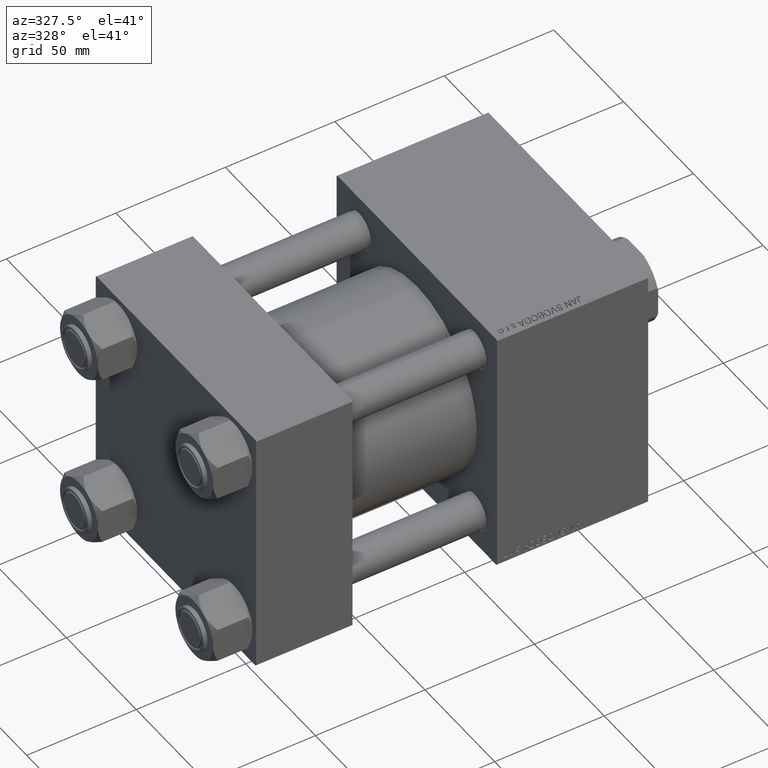
[diagram: clean part render]
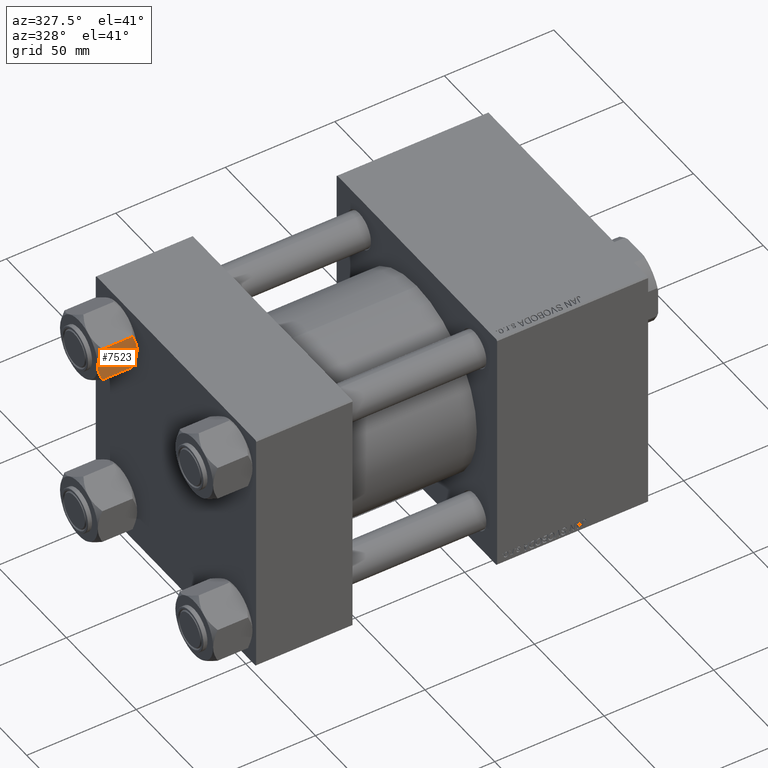
[diagram: same view with one face highlighted and labeled with its STEP entity id]
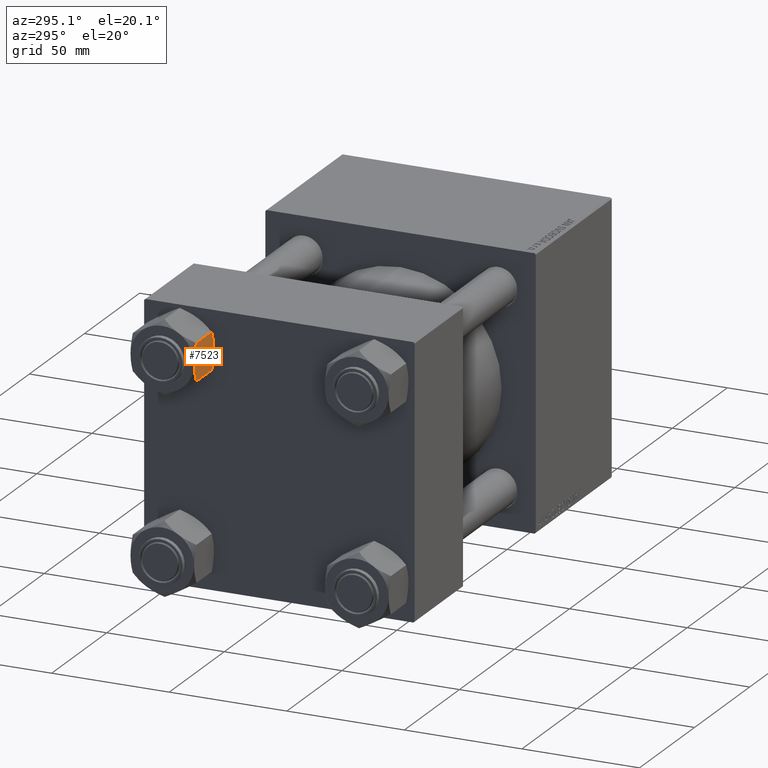
[diagram: same view with one face highlighted and labeled with its STEP entity id]
A machine part, auxiliary view. The second image highlights one B-rep face of the part: STEP entity #7523.
A second angle (auxiliary view) of the same face is appended — the face is thin or edge-on in the first view.
In plain terms, the highlighted planar face has unit normal (-0, 1, -0).
Its self-contained STEP definition (entity closure, byte-faithful):
#1155 = CARTESIAN_POINT ( 'NONE',  ( -7.030888348548060662, -13.52731680711294082, -1.709337883550297699 ) ) ;
#1221 = CARTESIAN_POINT ( 'NONE',  ( -3.287826776903143067, -13.52731680711293727, -17.61954155462465366 ) ) ;
#1599 = AXIS2_PLACEMENT_3D ( 'NONE', #21681, #33462, #13989 ) ;
#1779 = CARTESIAN_POINT ( 'NONE',  ( 7.810000000000002274, -13.52731680711293372, -16.00000000000000000 ) ) ;
#2582 = CARTESIAN_POINT ( 'NONE',  ( 7.810000000000002274, -13.52731680711293372, -18.00000000000000000 ) ) ;
#2660 = B_SPLINE_CURVE_WITH_KNOTS ( 'NONE', 3,
 ( #20650, #1155, #48002, #12950, #2668, #30352, #2920, #18822 ),
 .UNSPECIFIED., .F., .F.,
 ( 4, 2, 2, 4 ),
 ( 0.01980594295952729095, 0.02179054093496183425, 0.02377513891039637756, 0.02774433486126546416 ),
 .UNSPECIFIED. ) ;
#2668 = CARTESIAN_POINT ( 'NONE',  ( -4.553769687922305742, -13.52731680711294082, -0.7327291995145158721 ) ) ;
#2682 = CARTESIAN_POINT ( 'NONE',  ( 7.810000000000002274, -13.52731680711293372, -16.00000000000000000 ) ) ;
#2920 = CARTESIAN_POINT ( 'NONE',  ( -1.335584685993413956, -13.52731680711294082, 1.666960840196463265E-15 ) ) ;
#3300 = CARTESIAN_POINT ( 'NONE',  ( 3.004629197474316879E-15, -13.52731680711292661, -18.00000000000000000 ) ) ;
#4404 = EDGE_CURVE ( 'NONE', #24200, #39515, #39089, .T. ) ;
#4517 = CARTESIAN_POINT ( 'NONE',  ( 5.189513245496319094, -13.52731680711293372, -17.04988915682674033 ) ) ;
#5179 = CARTESIAN_POINT ( 'NONE',  ( 7.810000000000002274, -13.52731680711293372, -1.999999999999998224 ) ) ;
#5313 = CARTESIAN_POINT ( 'NONE',  ( -1.663410456966165407, -13.52731680711293727, -17.90195050864300086 ) ) ;
#5685 = CARTESIAN_POINT ( 'NONE',  ( 4.557734399832416905, -13.52731680711293016, -0.7341470174115138914 ) ) ;
#6010 = EDGE_CURVE ( 'NONE', #38517, #46363, #41108, .T. ) ;
#6029 = FACE_OUTER_BOUND ( 'NONE', #27165, .T. ) ;
#6794 = EDGE_CURVE ( 'NONE', #46363, #10642, #29865, .T. ) ;
#6917 = DIRECTION ( 'NONE',  ( -0.000000000000000000, -0.000000000000000000, 1.000000000000000000 ) ) ;
#7523 = ADVANCED_FACE ( 'NONE', ( #6029 ), #25529, .F. ) ;
#8358 = CARTESIAN_POINT ( 'NONE',  ( 7.622943475354630571, -13.52731680711293372, -16.00000000000000000 ) ) ;
#8602 = CARTESIAN_POINT ( 'NONE',  ( 3.004629197474316879E-15, -13.52731680711292661, -18.00000000000000000 ) ) ;
#8871 = VERTEX_POINT ( 'NONE', #5179 ) ;
#8959 = CARTESIAN_POINT ( 'NONE',  ( 7.810000000000002274, -13.52731680711293372, -1.999999999999998224 ) ) ;
#9070 = VERTEX_POINT ( 'NONE', #43231 ) ;
#9787 = CARTESIAN_POINT ( 'NONE',  ( 3.004629197474319246E-15, -13.52731680711293727, 0.000000000000000000 ) ) ;
#10290 = CARTESIAN_POINT ( 'NONE',  ( 1.663410456966175843, -13.52731680711293372, -0.09804949135698878826 ) ) ;
#10360 = EDGE_CURVE ( 'NONE', #46333, #8871, #42525, .T. ) ;
#10642 = VERTEX_POINT ( 'NONE', #17842 ) ;
#11331 = EDGE_CURVE ( 'NONE', #10642, #33786, #12312, .T. ) ;
#11518 = CARTESIAN_POINT ( 'NONE',  ( 7.810000000000002274, -13.52731680711293372, -1.999999999999998224 ) ) ;
#12312 = LINE ( 'NONE', #8959, #24849 ) ;
#12716 = CARTESIAN_POINT ( 'NONE',  ( 2.638177715023103609, -13.52731680711293372, -17.79984593233010415 ) ) ;
#12950 = CARTESIAN_POINT ( 'NONE',  ( -5.189513245496330640, -13.52731680711293905, -0.9501108431732574466 ) ) ;
#13302 = ORIENTED_EDGE ( 'NONE', *, *, #45197, .F. ) ;
#13984 = CARTESIAN_POINT ( 'NONE',  ( -7.809999999999999609, -13.52731680711293727, -18.00000000000000000 ) ) ;
#13989 = DIRECTION ( 'NONE',  ( -1.000000000000000000, -2.221156819432531199E-16, 0.000000000000000000 ) ) ;
#14068 = VECTOR ( 'NONE', #14075, 1000.000000000000000 ) ;
#14075 = DIRECTION ( 'NONE',  ( -1.000000000000000000, -2.221156819432531199E-16, 0.000000000000000000 ) ) ;
#16108 = ORIENTED_EDGE ( 'NONE', *, *, #10360, .T. ) ;
#16468 = B_SPLINE_CURVE_WITH_KNOTS ( 'NONE', 3,
 ( #3300, #50143, #31986, #47571, #5313, #16869, #1221, #24292, #48070, #35814, #43735, #40648 ),
 .UNSPECIFIED., .F., .F.,
 ( 4, 2, 2, 2, 2, 4 ),
 ( 0.02774433486126546416, 0.02873404020403549919, 0.02972374554680553421, 0.03170315623234560426, 0.03368256691788567431, 0.03566197760342574435 ),
 .UNSPECIFIED. ) ;
#16869 = CARTESIAN_POINT ( 'NONE',  ( -2.644243758052979398, -13.52731680711293905, -17.75917188019759507 ) ) ;
#17331 = DIRECTION ( 'NONE',  ( -1.000000000000000000, -2.221156819432531199E-16, 0.000000000000000000 ) ) ;
#17499 = CARTESIAN_POINT ( 'NONE',  ( 0.6693083573771232420, -13.52731680711293372, -0.01249333081107902900 ) ) ;
#17842 = CARTESIAN_POINT ( 'NONE',  ( -7.809999999999999609, -13.52731680711293727, -1.999999999999998224 ) ) ;
#18332 = ORIENTED_EDGE ( 'NONE', *, *, #4404, .F. ) ;
#18707 = DIRECTION ( 'NONE',  ( 1.000000000000000000, 2.221156819432531199E-16, -0.000000000000000000 ) ) ;
#18822 = CARTESIAN_POINT ( 'NONE',  ( 3.004629197474319246E-15, -13.52731680711293727, 0.000000000000000000 ) ) ;
#19594 = VECTOR ( 'NONE', #17331, 1000.000000000000000 ) ;
#19992 = ORIENTED_EDGE ( 'NONE', *, *, #23498, .F. ) ;
#20030 = VECTOR ( 'NONE', #6917, 1000.000000000000000 ) ;
#20650 = CARTESIAN_POINT ( 'NONE',  ( -7.622943475354647447, -13.52731680711293727, -2.000000000000000000 ) ) ;
#21334 = CARTESIAN_POINT ( 'NONE',  ( 5.184073258379408244, -13.52731680711293372, -0.9481437906500832513 ) ) ;
#21522 = LINE ( 'NONE', #1779, #14068 ) ;
#21681 = CARTESIAN_POINT ( 'NONE',  ( 7.810000000000002274, -13.52731680711293372, -18.00000000000000000 ) ) ;
#21861 = CARTESIAN_POINT ( 'NONE',  ( 7.030888348548049116, -13.52731680711293372, -16.29066211644970608 ) ) ;
#22620 = CARTESIAN_POINT ( 'NONE',  ( 7.622943475354630571, -13.52731680711293372, -16.00000000000000000 ) ) ;
#23498 = EDGE_CURVE ( 'NONE', #9070, #38517, #16468, .T. ) ;
#24200 = VERTEX_POINT ( 'NONE', #30676 ) ;
#24292 = CARTESIAN_POINT ( 'NONE',  ( -4.557734399832399141, -13.52731680711293905, -17.26585298258847700 ) ) ;
#24340 = DIRECTION ( 'NONE',  ( 1.000000000000000000, 2.221156819432531199E-16, -0.000000000000000000 ) ) ;
#24822 = VERTEX_POINT ( 'NONE', #22620 ) ;
#24849 = VECTOR ( 'NONE', #24340, 1000.000000000000000 ) ;
#25173 = CARTESIAN_POINT ( 'NONE',  ( 1.333889873825135686, -13.52731680711293549, -0.06156641003439144999 ) ) ;
#25432 = CARTESIAN_POINT ( 'NONE',  ( 3.287826776903156833, -13.52731680711293194, -0.3804584453753362960 ) ) ;
#25529 = PLANE ( 'NONE',  #1599 ) ;
#25929 = CARTESIAN_POINT ( 'NONE',  ( 0.3330234424833860007, -13.52731680711293727, 1.736982230502816853E-15 ) ) ;
#26123 = ORIENTED_EDGE ( 'NONE', *, *, #6010, .F. ) ;
#27165 = EDGE_LOOP ( 'NONE', ( #34834, #16108, #49069, #18332, #35873, #50028, #41244, #26123, #19992, #13302 ) ) ;
#27188 = CARTESIAN_POINT ( 'NONE',  ( 7.622943475354652776, -13.52731680711293372, -2.000000000000000000 ) ) ;
#27654 = LINE ( 'NONE', #11518, #45125 ) ;
#28344 = CARTESIAN_POINT ( 'NONE',  ( 1.335584685993413956, -13.52731680711293194, -17.99999999999998934 ) ) ;
#29429 = CARTESIAN_POINT ( 'NONE',  ( -7.622943475354625242, -13.52731680711293727, -16.00000000000000000 ) ) ;
#29525 = CARTESIAN_POINT ( 'NONE',  ( 6.422751913021828685, -13.52731680711293549, -1.436509110925896948 ) ) ;
#29615 = DIRECTION ( 'NONE',  ( -0.000000000000000000, -0.000000000000000000, 1.000000000000000000 ) ) ;
#29865 = LINE ( 'NONE', #13984, #37576 ) ;
#30352 = CARTESIAN_POINT ( 'NONE',  ( -2.638177715023105385, -13.52731680711294082, -0.2001540676698838062 ) ) ;
#30676 = CARTESIAN_POINT ( 'NONE',  ( 3.004629197474319246E-15, -13.52731680711293727, 0.000000000000000000 ) ) ;
#31942 = CARTESIAN_POINT ( 'NONE',  ( 4.553769687922296860, -13.52731680711293372, -17.26727080048547691 ) ) ;
#31986 = CARTESIAN_POINT ( 'NONE',  ( -0.6693083573771156924, -13.52731680711293549, -17.98750666918891028 ) ) ;
#32082 = B_SPLINE_CURVE_WITH_KNOTS ( 'NONE', 3,
 ( #8358, #21861, #32703, #4517, #31942, #12716, #28344, #8602 ),
 .UNSPECIFIED., .F., .F.,
 ( 4, 2, 2, 4 ),
 ( 0.01980594295952731870, 0.02179054093496185507, 0.02377513891039638796, 0.02774433486126546416 ),
 .UNSPECIFIED. ) ;
#32703 = CARTESIAN_POINT ( 'NONE',  ( 6.427364677720458275, -13.52731680711293549, -16.56149306284486045 ) ) ;
#33462 = DIRECTION ( 'NONE',  ( -2.221156819432531199E-16, 1.000000000000000000, 0.000000000000000000 ) ) ;
#33786 = VERTEX_POINT ( 'NONE', #41574 ) ;
#34055 = EDGE_CURVE ( 'NONE', #39515, #8871, #27654, .T. ) ;
#34834 = ORIENTED_EDGE ( 'NONE', *, *, #48686, .F. ) ;
#35814 = CARTESIAN_POINT ( 'NONE',  ( -6.422751913021801151, -13.52731680711293905, -16.56349088907410305 ) ) ;
#35873 = ORIENTED_EDGE ( 'NONE', *, *, #46051, .F. ) ;
#37576 = VECTOR ( 'NONE', #29615, 1000.000000000000000 ) ;
#38512 = CARTESIAN_POINT ( 'NONE',  ( 7.810000000000002274, -13.52731680711293372, -16.00000000000000000 ) ) ;
#38517 = VERTEX_POINT ( 'NONE', #29429 ) ;
#39089 = B_SPLINE_CURVE_WITH_KNOTS ( 'NONE', 3,
 ( #9787, #25929, #17499, #25173, #10290, #49195, #25432, #5685, #21334, #29525, #45120, #41530 ),
 .UNSPECIFIED., .F., .F.,
 ( 4, 2, 2, 2, 2, 4 ),
 ( 0.02774433486126546416, 0.02873404020403550266, 0.02972374554680554115, 0.03170315623234561814, 0.03368256691788569512, 0.03566197760342577211 ),
 .UNSPECIFIED. ) ;
#39515 = VERTEX_POINT ( 'NONE', #27188 ) ;
#40648 = CARTESIAN_POINT ( 'NONE',  ( -7.622943475354625242, -13.52731680711293727, -16.00000000000000000 ) ) ;
#41108 = LINE ( 'NONE', #2682, #19594 ) ;
#41244 = ORIENTED_EDGE ( 'NONE', *, *, #6794, .F. ) ;
#41530 = CARTESIAN_POINT ( 'NONE',  ( 7.622943475354652776, -13.52731680711293372, -2.000000000000000000 ) ) ;
#41574 = CARTESIAN_POINT ( 'NONE',  ( -7.622943475354647447, -13.52731680711293727, -2.000000000000000000 ) ) ;
#42525 = LINE ( 'NONE', #2582, #20030 ) ;
#43231 = CARTESIAN_POINT ( 'NONE',  ( 3.004629197474316879E-15, -13.52731680711292661, -18.00000000000000000 ) ) ;
#43735 = CARTESIAN_POINT ( 'NONE',  ( -7.030203932307560244, -13.52731680711293372, -16.29099812210859710 ) ) ;
#45120 = CARTESIAN_POINT ( 'NONE',  ( 7.030203932307590442, -13.52731680711293727, -1.709001877891394017 ) ) ;
#45125 = VECTOR ( 'NONE', #18707, 1000.000000000000000 ) ;
#45197 = EDGE_CURVE ( 'NONE', #24822, #9070, #32082, .T. ) ;
#46051 = EDGE_CURVE ( 'NONE', #33786, #24200, #2660, .T. ) ;
#46333 = VERTEX_POINT ( 'NONE', #38512 ) ;
#46363 = VERTEX_POINT ( 'NONE', #47693 ) ;
#47571 = CARTESIAN_POINT ( 'NONE',  ( -1.333889873825127026, -13.52731680711293727, -17.93843358996560156 ) ) ;
#47693 = CARTESIAN_POINT ( 'NONE',  ( -7.809999999999999609, -13.52731680711293727, -16.00000000000000000 ) ) ;
#48002 = CARTESIAN_POINT ( 'NONE',  ( -6.427364677720470709, -13.52731680711293727, -1.438506937155139109 ) ) ;
#48070 = CARTESIAN_POINT ( 'NONE',  ( -5.184073258379385152, -13.52731680711293727, -17.05185620934990709 ) ) ;
#48686 = EDGE_CURVE ( 'NONE', #46333, #24822, #21522, .T. ) ;
#49069 = ORIENTED_EDGE ( 'NONE', *, *, #34055, .F. ) ;
#49195 = CARTESIAN_POINT ( 'NONE',  ( 2.644243758052992277, -13.52731680711293372, -0.2408281198023969893 ) ) ;
#50028 = ORIENTED_EDGE ( 'NONE', *, *, #11331, .F. ) ;
#50143 = CARTESIAN_POINT ( 'NONE',  ( -0.3330234424833806162, -13.52731680711293727, -17.99999999999999645 ) ) ;